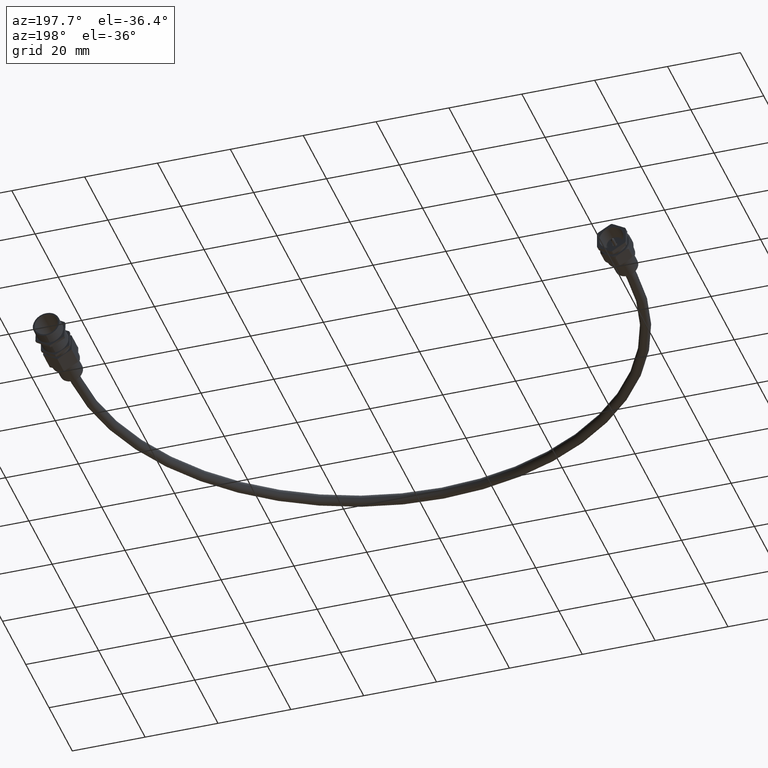
[diagram: clean part render]
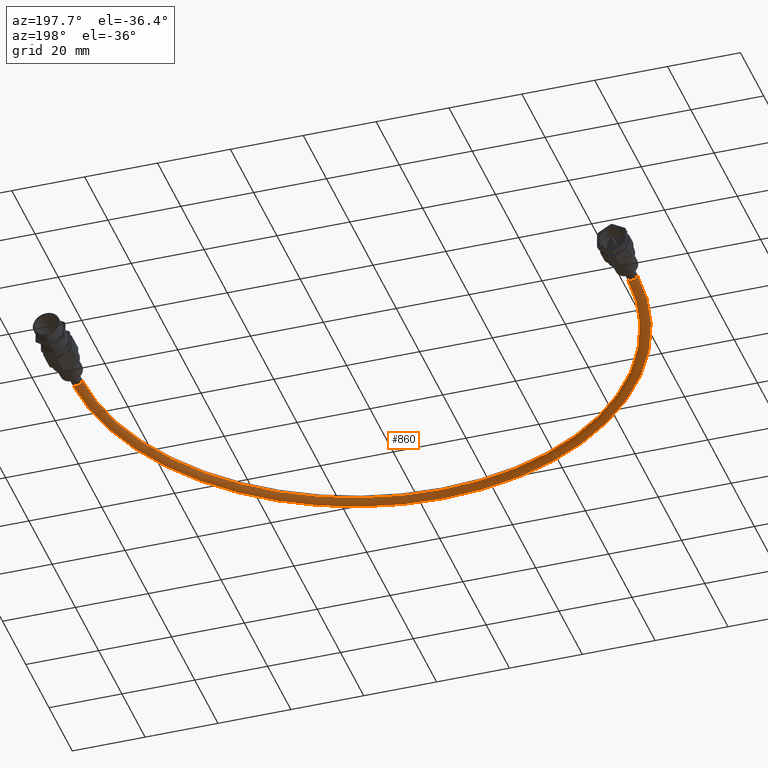
[diagram: same view with one face highlighted and labeled with its STEP entity id]
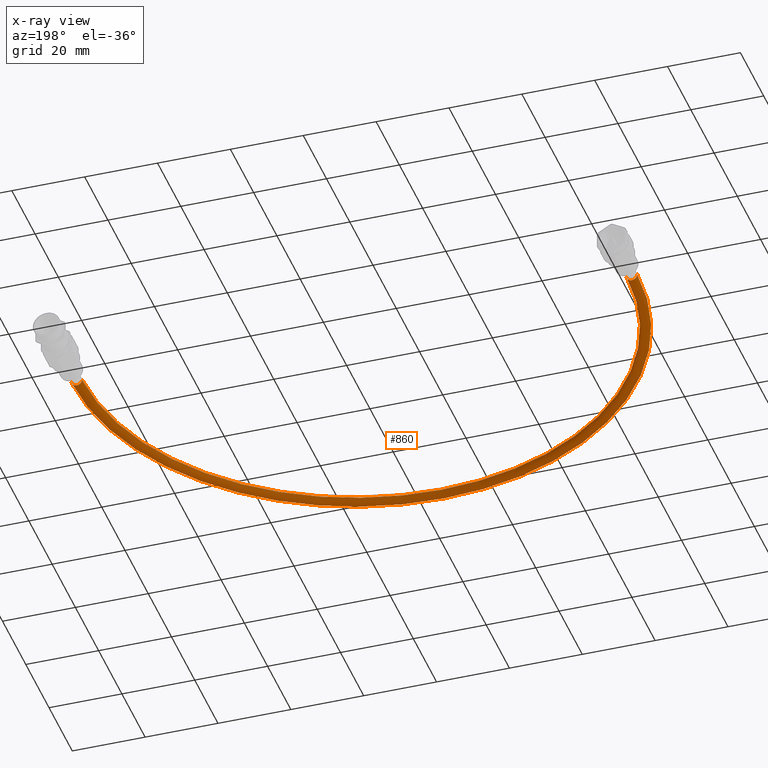
[diagram: x-ray of the same camera — body ghosted, the highlighted face saturated]
A machine part, auxiliary view. The second image highlights one B-rep face of the part: STEP entity #860.
The next image is the same camera in x-ray: the body ghosted, the highlighted face saturated — about 0% of this face is hidden behind the body in this view.
In plain terms, the highlighted toroidal blend (fillet) surface has major radius 76.2 mm and minor (blend) radius 1.4605 mm.
Its self-contained STEP definition (entity closure, byte-faithful):
#247 = AXIS2_PLACEMENT_3D ( 'NONE', #5628, #5623, #5631 ) ;
#601 = TOROIDAL_SURFACE ( 'NONE', #247, 2.999999999999999100, 0.05749999999999994000 ) ;
#611 = FACE_OUTER_BOUND ( 'NONE', #3978, .T. ) ;
#748 = CIRCLE ( 'NONE', #6010, 0.05749999999999996800 ) ;
#860 = ADVANCED_FACE ( 'NONE', ( #611 ), #601, .T. ) ;
#1183 = VERTEX_POINT ( 'NONE', #5912 ) ;
#1195 = VERTEX_POINT ( 'NONE', #5924 ) ;
#1226 = VERTEX_POINT ( 'NONE', #5955 ) ;
#1229 = VERTEX_POINT ( 'NONE', #5958 ) ;
#1243 = VERTEX_POINT ( 'NONE', #6202 ) ;
#1275 = VERTEX_POINT ( 'NONE', #6234 ) ;
#1471 = EDGE_CURVE ( 'NONE', #1183, #1243, #748, .T. ) ;
#1551 = EDGE_CURVE ( 'NONE', #1195, #1275, #6650, .T. ) ;
#1552 = EDGE_CURVE ( 'NONE', #1226, #1195, #6652, .T. ) ;
#2316 = AXIS2_PLACEMENT_3D ( 'NONE', #3406, #3407, #3408 ) ;
#2341 = AXIS2_PLACEMENT_3D ( 'NONE', #3513, #3514, #3515 ) ;
#2345 = AXIS2_PLACEMENT_3D ( 'NONE', #3526, #3527, #3528 ) ;
#3065 = CIRCLE ( 'NONE', #2316, 0.05749999999999996800 ) ;
#3134 = CIRCLE ( 'NONE', #2341, 2.942499999999999000 ) ;
#3138 = CIRCLE ( 'NONE', #2345, 3.057499999999999200 ) ;
#3406 = CARTESIAN_POINT ( 'NONE',  ( 0.0000000000000000000, -0.5752007457617436300, 0.0000000000000000000 ) ) ;
#3407 = DIRECTION ( 'NONE',  ( -0.0000000000000000000, 1.000000000000000000, -0.0000000000000000000 ) ) ;
#3408 = DIRECTION ( 'NONE',  ( 0.0000000000000000000, 0.0000000000000000000, 1.000000000000000000 ) ) ;
#3513 = CARTESIAN_POINT ( 'NONE',  ( 3.000000000000000400, -0.5752007457617434000, -7.041719095097273100E-018 ) ) ;
#3514 = DIRECTION ( 'NONE',  ( 0.0000000000000000000, 0.0000000000000000000, 1.000000000000000000 ) ) ;
#3515 = DIRECTION ( 'NONE',  ( 1.000000000000000000, 0.0000000000000000000, 0.0000000000000000000 ) ) ;
#3526 = CARTESIAN_POINT ( 'NONE',  ( 3.000000000000000400, -0.5752007457617434000, 0.0000000000000000000 ) ) ;
#3527 = DIRECTION ( 'NONE',  ( 0.0000000000000000000, 0.0000000000000000000, 1.000000000000000000 ) ) ;
#3528 = DIRECTION ( 'NONE',  ( 1.000000000000000000, 0.0000000000000000000, 0.0000000000000000000 ) ) ;
#3978 = EDGE_LOOP ( 'NONE', ( #4192, #4193, #4194, #4195, #4196, #4197 ) ) ;
#4192 = ORIENTED_EDGE ( 'NONE', *, *, #5039, .F. ) ;
#4193 = ORIENTED_EDGE ( 'NONE', *, *, #1471, .F. ) ;
#4194 = ORIENTED_EDGE ( 'NONE', *, *, #4992, .F. ) ;
#4195 = ORIENTED_EDGE ( 'NONE', *, *, #5035, .T. ) ;
#4196 = ORIENTED_EDGE ( 'NONE', *, *, #1551, .F. ) ;
#4197 = ORIENTED_EDGE ( 'NONE', *, *, #1552, .F. ) ;
#4992 = EDGE_CURVE ( 'NONE', #1229, #1183, #3065, .T. ) ;
#5035 = EDGE_CURVE ( 'NONE', #1229, #1275, #3134, .T. ) ;
#5039 = EDGE_CURVE ( 'NONE', #1243, #1226, #3138, .T. ) ;
#5623 = DIRECTION ( 'NONE',  ( 0.0000000000000000000, 0.0000000000000000000, 1.000000000000000000 ) ) ;
#5628 = CARTESIAN_POINT ( 'NONE',  ( 3.000000000000000400, -0.5752007457617434000, 0.0000000000000000000 ) ) ;
#5631 = DIRECTION ( 'NONE',  ( 1.000000000000000000, 0.0000000000000000000, 0.0000000000000000000 ) ) ;
#5912 = CARTESIAN_POINT ( 'NONE',  ( 7.041719095097276100E-018, -0.5752007457617436300, -0.05749999999999996800 ) ) ;
#5924 = CARTESIAN_POINT ( 'NONE',  ( 6.000130396817543700, -0.5752007457617427400, -0.05749985214476614800 ) ) ;
#5955 = CARTESIAN_POINT ( 'NONE',  ( 6.057499999999999200, -0.5752007457617427400, 0.0000000000000000000 ) ) ;
#5958 = CARTESIAN_POINT ( 'NONE',  ( 0.05749999999999996800, -0.5752007457617436300, -7.041719095097196000E-018 ) ) ;
#6010 = AXIS2_PLACEMENT_3D ( 'NONE', #6318, #6319, #6320 ) ;
#6067 = AXIS2_PLACEMENT_3D ( 'NONE', #6535, #6536, #6537 ) ;
#6068 = AXIS2_PLACEMENT_3D ( 'NONE', #6538, #6539, #6540 ) ;
#6202 = CARTESIAN_POINT ( 'NONE',  ( -0.05749999999999950300, -0.5752007457617436300, 0.0000000000000000000 ) ) ;
#6234 = CARTESIAN_POINT ( 'NONE',  ( 5.942499999999999000, -0.5752007457617427400, -7.041719095097248400E-018 ) ) ;
#6318 = CARTESIAN_POINT ( 'NONE',  ( 0.0000000000000000000, -0.5752007457617436300, 0.0000000000000000000 ) ) ;
#6319 = DIRECTION ( 'NONE',  ( -0.0000000000000000000, 1.000000000000000000, -0.0000000000000000000 ) ) ;
#6320 = DIRECTION ( 'NONE',  ( 0.0000000000000000000, 0.0000000000000000000, 1.000000000000000000 ) ) ;
#6535 = CARTESIAN_POINT ( 'NONE',  ( 5.999999999999999100, -0.5752007457617427400, 0.0000000000000000000 ) ) ;
#6536 = DIRECTION ( 'NONE',  ( 0.0000000000000000000, 1.000000000000000000, 0.0000000000000000000 ) ) ;
#6537 = DIRECTION ( 'NONE',  ( 0.0000000000000000000, 0.0000000000000000000, 1.000000000000000000 ) ) ;
#6538 = CARTESIAN_POINT ( 'NONE',  ( 5.999999999999999100, -0.5752007457617427400, 0.0000000000000000000 ) ) ;
#6539 = DIRECTION ( 'NONE',  ( 0.0000000000000000000, 1.000000000000000000, 0.0000000000000000000 ) ) ;
#6540 = DIRECTION ( 'NONE',  ( 0.0000000000000000000, 0.0000000000000000000, 1.000000000000000000 ) ) ;
#6650 = CIRCLE ( 'NONE', #6067, 0.05749999999999994000 ) ;
#6652 = CIRCLE ( 'NONE', #6068, 0.05749999999999994000 ) ;